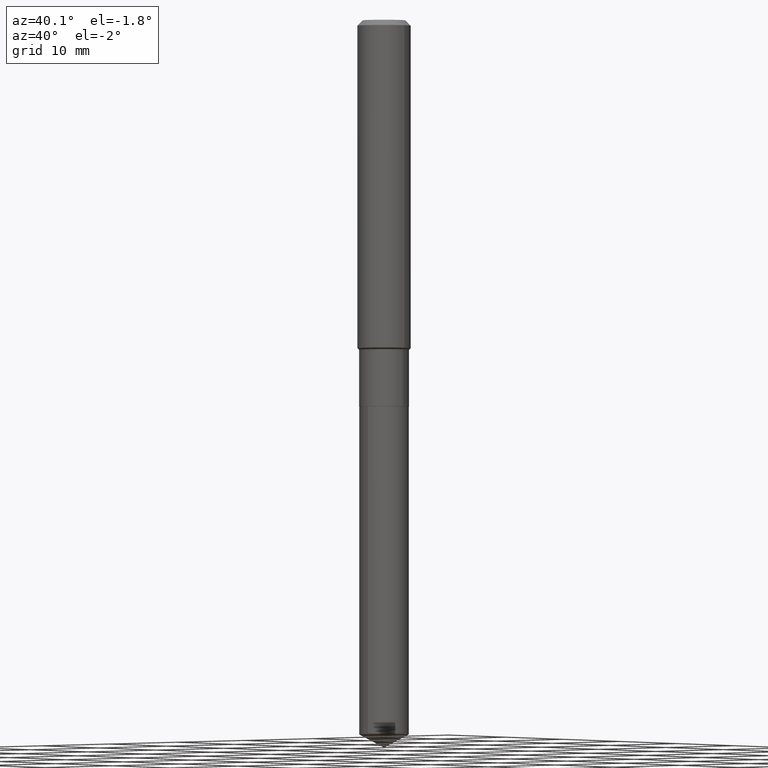
[diagram: clean part render]
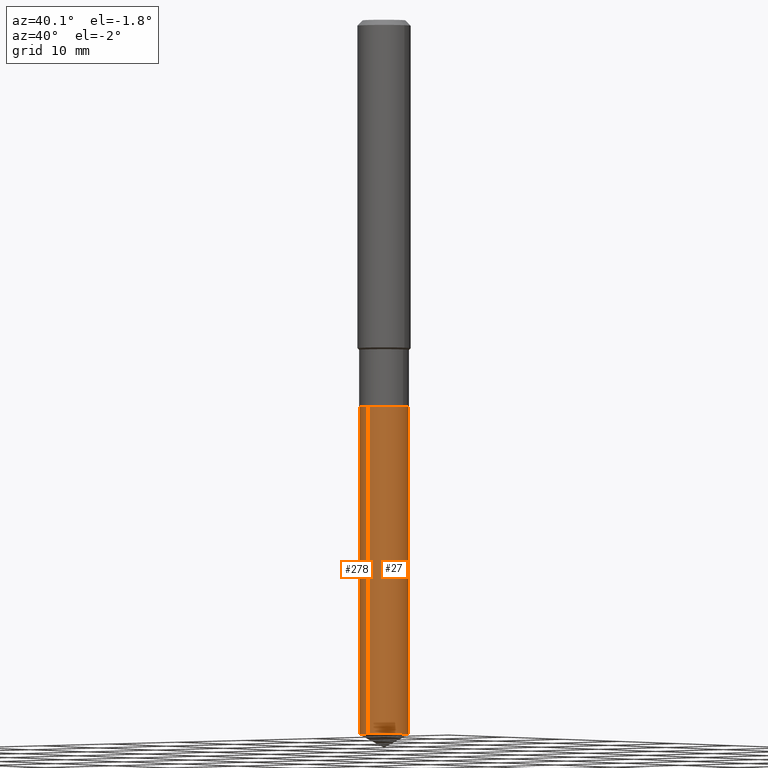
[diagram: same view with one multi-face feature highlighted, each face labeled with its STEP entity id]
A machine part, auxiliary view. The highlighted faces form ONE feature: a constant-radius fillet chain: 2 tangent blend faces with common blend radius 2.8003 mm. The faces share edges in the B-rep.
Their STEP definitions:
[1] entity #278 (Cylinder):
#2 = CARTESIAN_POINT ( 'NONE',  ( 7.833733661755878674E-16, 0.1102499999999889402, -3.169679035159322478 ) ) ;
#15 = ORIENTED_EDGE ( 'NONE', *, *, #468, .F. ) ;
#19 = VERTEX_POINT ( 'NONE', #401 ) ;
#20 = CIRCLE ( 'NONE', #331, 0.1102500000000000008 ) ;
#21 = CARTESIAN_POINT ( 'NONE',  ( 4.197647205816787040E-29, -5.993127718124259988E-15, -1.716500000000000137 ) ) ;
#40 = CYLINDRICAL_SURFACE ( 'NONE', #135, 0.1102500000000000008 ) ;
#52 = ORIENTED_EDGE ( 'NONE', *, *, #395, .T. ) ;
#73 = CARTESIAN_POINT ( 'NONE',  ( 7.833733661755523687E-16, 0.1102499999999940195, -1.716500000000000359 ) ) ;
#77 = DIRECTION ( 'NONE',  ( -2.445459280749813297E-29, 3.491494979808682448E-15, 1.000000000000000000 ) ) ;
#95 = VERTEX_POINT ( 'NONE', #147 ) ;
#129 = EDGE_CURVE ( 'NONE', #261, #228, #282, .T. ) ;
#135 = AXIS2_PLACEMENT_3D ( 'NONE', #300, #455, #339 ) ;
#147 = CARTESIAN_POINT ( 'NONE',  ( -7.698716352148689729E-16, -0.1102500000000059960, -1.716499999999999915 ) ) ;
#158 = EDGE_LOOP ( 'NONE', ( #305, #52, #448, #15 ) ) ;
#168 = DIRECTION ( 'NONE',  ( -2.445459280749813297E-29, 3.491494979808682448E-15, 1.000000000000000000 ) ) ;
#226 = DIRECTION ( 'NONE',  ( -2.445459280749813297E-29, 3.491494979808682448E-15, 1.000000000000000000 ) ) ;
#228 = VERTEX_POINT ( 'NONE', #303 ) ;
#229 = LINE ( 'NONE', #304, #251 ) ;
#235 = DIRECTION ( 'NONE',  ( -2.445459280749813297E-29, 3.491494979808682448E-15, 1.000000000000000000 ) ) ;
#251 = VECTOR ( 'NONE', #235, 39.37007874015748143 ) ;
#261 = VERTEX_POINT ( 'NONE', #2 ) ;
#278 = ADVANCED_FACE ( 'NONE', ( #416 ), #40, .T. ) ;
#282 = LINE ( 'NONE', #73, #342 ) ;
#300 = CARTESIAN_POINT ( 'NONE',  ( 4.197647205816787040E-29, -5.993127718124259988E-15, -1.716500000000000137 ) ) ;
#303 = CARTESIAN_POINT ( 'NONE',  ( 7.833733661755882619E-16, 0.1102499999999940195, -1.716500000000000359 ) ) ;
#304 = CARTESIAN_POINT ( 'NONE',  ( -7.698716352148689729E-16, -0.1102500000000059960, -1.716499999999999915 ) ) ;
#305 = ORIENTED_EDGE ( 'NONE', *, *, #129, .F. ) ;
#331 = AXIS2_PLACEMENT_3D ( 'NONE', #21, #168, #472 ) ;
#339 = DIRECTION ( 'NONE',  ( -6.982962677686266711E-15, -1.000000000000000000, 2.477866660919966807E-15 ) ) ;
#342 = VECTOR ( 'NONE', #77, 39.37007874015748143 ) ;
#354 = EDGE_CURVE ( 'NONE', #19, #95, #229, .T. ) ;
#391 = CARTESIAN_POINT ( 'NONE',  ( 7.751337363938210941E-29, -1.106689502414625700E-14, -3.169679035159322034 ) ) ;
#394 = AXIS2_PLACEMENT_3D ( 'NONE', #391, #226, #396 ) ;
#395 = EDGE_CURVE ( 'NONE', #261, #19, #465, .T. ) ;
#396 = DIRECTION ( 'NONE',  ( -6.982962677686266711E-15, -1.000000000000000000, 4.955733321839933614E-15 ) ) ;
#401 = CARTESIAN_POINT ( 'NONE',  ( -7.698716352148333756E-16, -0.1102500000000110753, -3.169679035159321590 ) ) ;
#416 = FACE_OUTER_BOUND ( 'NONE', #158, .T. ) ;
#448 = ORIENTED_EDGE ( 'NONE', *, *, #354, .T. ) ;
#455 = DIRECTION ( 'NONE',  ( -2.445459280749813297E-29, 3.491494979808682448E-15, 1.000000000000000000 ) ) ;
#465 = CIRCLE ( 'NONE', #394, 0.1102500000000000008 ) ;
#468 = EDGE_CURVE ( 'NONE', #228, #95, #20, .T. ) ;
#472 = DIRECTION ( 'NONE',  ( -6.982962677686266711E-15, -1.000000000000000000, 2.477866660919966807E-15 ) ) ;
[2] entity #27 (Cylinder):
#2 = CARTESIAN_POINT ( 'NONE',  ( 7.833733661755878674E-16, 0.1102499999999889402, -3.169679035159322478 ) ) ;
#19 = VERTEX_POINT ( 'NONE', #401 ) ;
#27 = ADVANCED_FACE ( 'NONE', ( #364 ), #484, .T. ) ;
#56 = ORIENTED_EDGE ( 'NONE', *, *, #354, .F. ) ;
#73 = CARTESIAN_POINT ( 'NONE',  ( 7.833733661755523687E-16, 0.1102499999999940195, -1.716500000000000359 ) ) ;
#77 = DIRECTION ( 'NONE',  ( -2.445459280749813297E-29, 3.491494979808682448E-15, 1.000000000000000000 ) ) ;
#85 = ORIENTED_EDGE ( 'NONE', *, *, #390, .T. ) ;
#95 = VERTEX_POINT ( 'NONE', #147 ) ;
#129 = EDGE_CURVE ( 'NONE', #261, #228, #282, .T. ) ;
#131 = EDGE_LOOP ( 'NONE', ( #85, #236, #267, #56 ) ) ;
#143 = CIRCLE ( 'NONE', #464, 0.1102500000000000008 ) ;
#147 = CARTESIAN_POINT ( 'NONE',  ( -7.698716352148689729E-16, -0.1102500000000059960, -1.716499999999999915 ) ) ;
#160 = CARTESIAN_POINT ( 'NONE',  ( 4.197647205816787040E-29, -5.993127718124259988E-15, -1.716500000000000137 ) ) ;
#178 = CARTESIAN_POINT ( 'NONE',  ( 4.197647205816787040E-29, -5.993127718124259988E-15, -1.716500000000000137 ) ) ;
#183 = DIRECTION ( 'NONE',  ( -6.982962677686266711E-15, -1.000000000000000000, 2.477866660919966807E-15 ) ) ;
#218 = DIRECTION ( 'NONE',  ( -2.445459280749813297E-29, 3.491494979808682448E-15, 1.000000000000000000 ) ) ;
#228 = VERTEX_POINT ( 'NONE', #303 ) ;
#229 = LINE ( 'NONE', #304, #251 ) ;
#235 = DIRECTION ( 'NONE',  ( -2.445459280749813297E-29, 3.491494979808682448E-15, 1.000000000000000000 ) ) ;
#236 = ORIENTED_EDGE ( 'NONE', *, *, #129, .T. ) ;
#251 = VECTOR ( 'NONE', #235, 39.37007874015748143 ) ;
#257 = AXIS2_PLACEMENT_3D ( 'NONE', #432, #315, #347 ) ;
#261 = VERTEX_POINT ( 'NONE', #2 ) ;
#267 = ORIENTED_EDGE ( 'NONE', *, *, #366, .F. ) ;
#282 = LINE ( 'NONE', #73, #342 ) ;
#303 = CARTESIAN_POINT ( 'NONE',  ( 7.833733661755882619E-16, 0.1102499999999940195, -1.716500000000000359 ) ) ;
#304 = CARTESIAN_POINT ( 'NONE',  ( -7.698716352148689729E-16, -0.1102500000000059960, -1.716499999999999915 ) ) ;
#315 = DIRECTION ( 'NONE',  ( -2.445459280749813297E-29, 3.491494979808682448E-15, 1.000000000000000000 ) ) ;
#342 = VECTOR ( 'NONE', #77, 39.37007874015748143 ) ;
#347 = DIRECTION ( 'NONE',  ( -6.982962677686266711E-15, -1.000000000000000000, 4.955733321839933614E-15 ) ) ;
#354 = EDGE_CURVE ( 'NONE', #19, #95, #229, .T. ) ;
#364 = FACE_OUTER_BOUND ( 'NONE', #131, .T. ) ;
#366 = EDGE_CURVE ( 'NONE', #95, #228, #143, .T. ) ;
#383 = DIRECTION ( 'NONE',  ( -6.982962677686266711E-15, -1.000000000000000000, 2.477866660919966807E-15 ) ) ;
#388 = DIRECTION ( 'NONE',  ( -2.445459280749813297E-29, 3.491494979808682448E-15, 1.000000000000000000 ) ) ;
#390 = EDGE_CURVE ( 'NONE', #19, #261, #479, .T. ) ;
#401 = CARTESIAN_POINT ( 'NONE',  ( -7.698716352148333756E-16, -0.1102500000000110753, -3.169679035159321590 ) ) ;
#402 = AXIS2_PLACEMENT_3D ( 'NONE', #178, #218, #183 ) ;
#432 = CARTESIAN_POINT ( 'NONE',  ( 7.751337363938210941E-29, -1.106689502414625700E-14, -3.169679035159322034 ) ) ;
#464 = AXIS2_PLACEMENT_3D ( 'NONE', #160, #388, #383 ) ;
#479 = CIRCLE ( 'NONE', #257, 0.1102500000000000008 ) ;
#484 = CYLINDRICAL_SURFACE ( 'NONE', #402, 0.1102500000000000008 ) ;